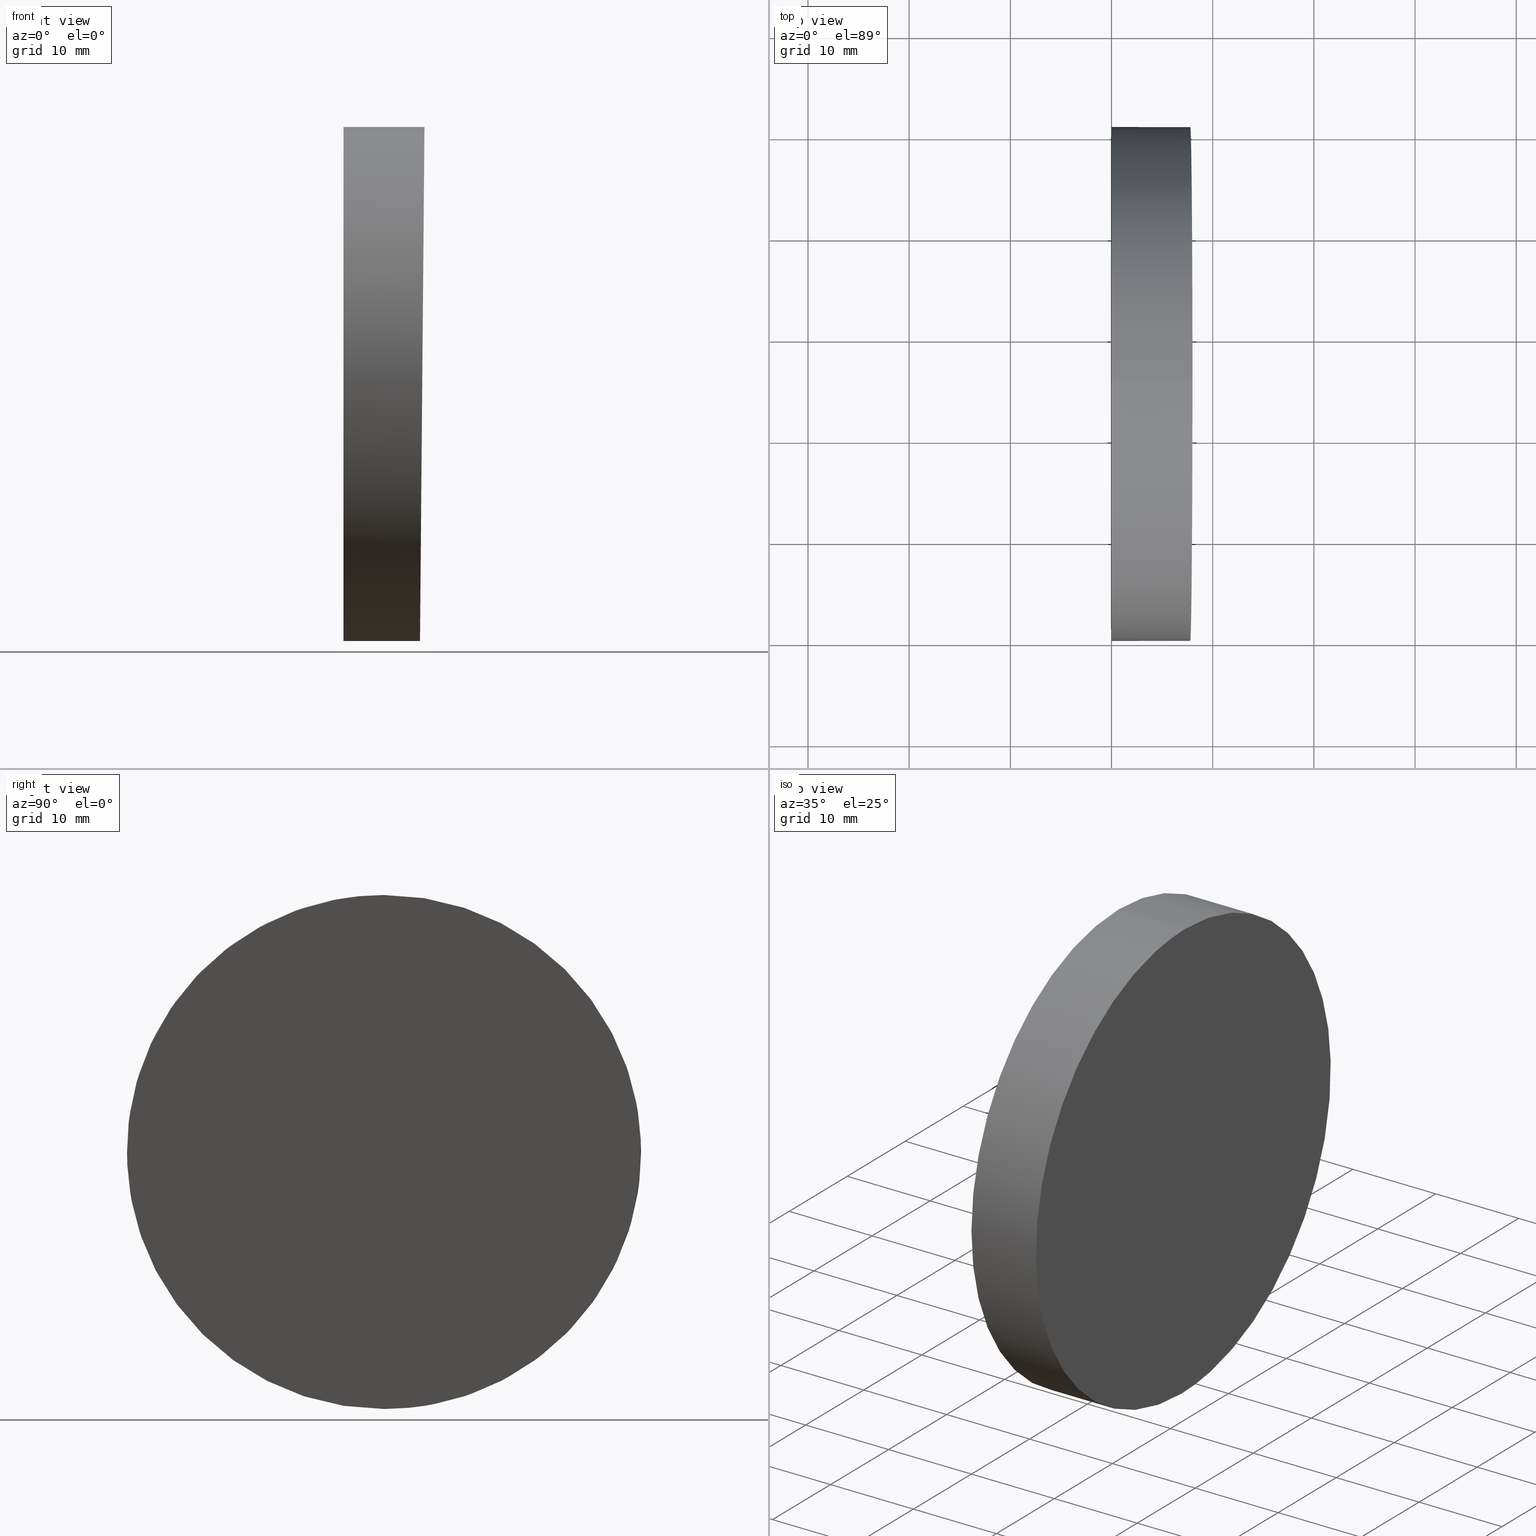
[diagram: canonical four-view strip — front | top / right | iso, engineering-drawing reading convention]
A machine part, canonical four-view strip (front | top / right | iso — engineering-drawing reading convention). The complete STEP part file that produces these views, byte-faithful:
ISO-10303-21;
HEADER;
FILE_DESCRIPTION (( 'STEP AP214' ),
    '1' );
FILE_NAME ('351502.STEP',
    '2019-08-14T07:58:45',
    ( 'user' ),
    ( '΢���й�' ),
    'SwSTEP 2.0',
    'SolidWorks 2016',
    '' );
FILE_SCHEMA (( 'AUTOMOTIVE_DESIGN' ));
ENDSEC;

DATA;
#1 = VERTEX_POINT ( 'NONE', #109 ) ;
#2 = COLOUR_RGB ( '',1.000000000000000000, 1.000000000000000000, 1.000000000000000000 ) ;
#3 = SURFACE_STYLE_FILL_AREA ( #131 ) ;
#4 = SURFACE_SIDE_STYLE ('',( #14 ) ) ;
#5 = FACE_OUTER_BOUND ( 'NONE', #124, .T. ) ;
#6 = CARTESIAN_POINT ( 'NONE',  ( 8.000000000000005300, 76.19999999999998900, 25.39999999999999900 ) ) ;
#7 = EDGE_LOOP ( 'NONE', ( #86, #9, #41, #103 ) ) ;
#8 = CARTESIAN_POINT ( 'NONE',  ( 8.000000000000005300, 50.79999999999999700, 25.39999999999999900 ) ) ;
#9 = ORIENTED_EDGE ( 'NONE', *, *, #98, .T. ) ;
#10 =( GEOMETRIC_REPRESENTATION_CONTEXT ( 3 ) GLOBAL_UNCERTAINTY_ASSIGNED_CONTEXT ( ( #113 ) ) GLOBAL_UNIT_ASSIGNED_CONTEXT ( ( #51, #116, #43 ) ) REPRESENTATION_CONTEXT ( 'NONE', 'WORKASPACE' ) );
#11 = ORIENTED_EDGE ( 'NONE', *, *, #111, .T. ) ;
#12 = APPLICATION_PROTOCOL_DEFINITION ( 'draft international standard', 'automotive_design', 1998, #87 ) ;
#13 = APPLICATION_CONTEXT ( 'automotive_design' ) ;
#14 = SURFACE_STYLE_FILL_AREA ( #76 ) ;
#15 = CARTESIAN_POINT ( 'NONE',  ( 12.50000000000000000, 25.40000000000000200, -25.39999999999999900 ) ) ;
#16 = UNCERTAINTY_MEASURE_WITH_UNIT (LENGTH_MEASURE( 1.000000000000000100E-005 ), #46, 'distance_accuracy_value', 'NONE');
#17 = FILL_AREA_STYLE_COLOUR ( '', #38 ) ;
#18 = CARTESIAN_POINT ( 'NONE',  ( 0.0000000000000000000, 25.40000000000000200, -25.39999999999999900 ) ) ;
#19 = EDGE_LOOP ( 'NONE', ( #110, #97, #11, #122 ) ) ;
#20 = CARTESIAN_POINT ( 'NONE',  ( 12.50000000000000000, 25.39999999999999900, 0.0000000000000000000 ) ) ;
#21 = AXIS2_PLACEMENT_3D ( 'NONE', #8, #71, #140 ) ;
#22 = AXIS2_PLACEMENT_3D ( 'NONE', #137, #63, #129 ) ;
#23 = VECTOR ( 'NONE', #70, 1000.000000000000000 ) ;
#24 = CLOSED_SHELL ( 'NONE', ( #32, #42, #77, #132 ) ) ;
#25 = PRODUCT_CONTEXT ( 'NONE', #13, 'mechanical' ) ;
#26 = APPLICATION_PROTOCOL_DEFINITION ( 'draft international standard', 'automotive_design', 1998, #13 ) ;
#27 = PRESENTATION_LAYER_ASSIGNMENT (  '', '', ( #39 ) ) ;
#28 = AXIS2_PLACEMENT_3D ( 'NONE', #130, #138, #53 ) ;
#29 = FILL_AREA_STYLE_COLOUR ( '', #2 ) ;
#30 =( NAMED_UNIT ( * ) SI_UNIT ( $, .STERADIAN. ) SOLID_ANGLE_UNIT ( ) );
#31 = CARTESIAN_POINT ( 'NONE',  ( 0.0000000000000000000, 25.39999999999999900, 25.39999999999999900 ) ) ;
#32 = ADVANCED_FACE ( 'NONE', ( #37 ), #121, .T. ) ;
#33 = DIRECTION ( 'NONE',  ( 0.0000000000000000000, 0.0000000000000000000, 1.000000000000000000 ) ) ;
#34 = EDGE_CURVE ( 'NONE', #1, #114, #36, .T. ) ;
#35 = LINE ( 'NONE', #15, #23 ) ;
#36 =( BOUNDED_CURVE ( )  B_SPLINE_CURVE ( 3, ( #57, #120, #81, #73 ),
 .UNSPECIFIED., .F., .T. ) 
 B_SPLINE_CURVE_WITH_KNOTS ( ( 4, 4 ),
 ( 0.0000000000000000000, 3.141592653589793100 ),
 .UNSPECIFIED. ) 
 CURVE ( )  GEOMETRIC_REPRESENTATION_ITEM ( )  RATIONAL_B_SPLINE_CURVE ( ( 1.000000000000000000, 0.3333333333333333700, 0.3333333333333333700, 1.000000000000000000 ) ) 
 REPRESENTATION_ITEM ( '' )  );
#37 = FACE_OUTER_BOUND ( 'NONE', #7, .T. ) ;
#38 = COLOUR_RGB ( '',1.000000000000000000, 1.000000000000000000, 1.000000000000000000 ) ;
#39 = STYLED_ITEM ( 'NONE', ( #117 ), #80 ) ;
#40 = DIRECTION ( 'NONE',  ( 1.000000000000000000, 0.0000000000000000000, 0.0000000000000000000 ) ) ;
#41 = ORIENTED_EDGE ( 'NONE', *, *, #133, .F. ) ;
#42 = ADVANCED_FACE ( 'NONE', ( #5 ), #93, .F. ) ;
#43 =( NAMED_UNIT ( * ) SI_UNIT ( $, .STERADIAN. ) SOLID_ANGLE_UNIT ( ) );
#44 = DIRECTION ( 'NONE',  ( -1.000000000000000000, 0.0000000000000000000, 0.0000000000000000000 ) ) ;
#45 = AXIS2_PLACEMENT_3D ( 'NONE', #48, #47, #108 ) ;
#46 =( LENGTH_UNIT ( ) NAMED_UNIT ( * ) SI_UNIT ( .MILLI., .METRE. ) );
#47 = DIRECTION ( 'NONE',  ( 1.000000000000000000, 0.0000000000000000000, 0.0000000000000000000 ) ) ;
#48 = CARTESIAN_POINT ( 'NONE',  ( 5.204170427930421300E-015, 50.79999999999999700, -25.39999999999999900 ) ) ;
#49 = ORIENTED_EDGE ( 'NONE', *, *, #34, .F. ) ;
#50 = STYLED_ITEM ( 'NONE', ( #125 ), #91 ) ;
#51 =( LENGTH_UNIT ( ) NAMED_UNIT ( * ) SI_UNIT ( .MILLI., .METRE. ) );
#52 = PRESENTATION_LAYER_ASSIGNMENT (  '', '', ( #50 ) ) ;
#53 = DIRECTION ( 'NONE',  ( 0.0000000000000000000, 0.0000000000000000000, 1.000000000000000000 ) ) ;
#54 = LINE ( 'NONE', #106, #105 ) ;
#55 = SURFACE_SIDE_STYLE ('',( #3 ) ) ;
#56 = CARTESIAN_POINT ( 'NONE',  ( 8.000000000000005300, 25.39999999999999900, 25.39999999999999900 ) ) ;
#57 = CARTESIAN_POINT ( 'NONE',  ( 7.556675116229812700, 25.40000000000000200, -25.39999999999999900 ) ) ;
#58 = ORIENTED_EDGE ( 'NONE', *, *, #95, .F. ) ;
#59 = MECHANICAL_DESIGN_GEOMETRIC_PRESENTATION_REPRESENTATION (  '', ( #50 ), #65 ) ;
#60 =( BOUNDED_CURVE ( )  B_SPLINE_CURVE ( 3, ( #56, #6, #139, #64 ),
 .UNSPECIFIED., .F., .T. ) 
 B_SPLINE_CURVE_WITH_KNOTS ( ( 4, 4 ),
 ( 3.141592653589793100, 6.283185307179586200 ),
 .UNSPECIFIED. ) 
 CURVE ( )  GEOMETRIC_REPRESENTATION_ITEM ( )  RATIONAL_B_SPLINE_CURVE ( ( 1.000000000000000000, 0.3333333333333333700, 0.3333333333333333700, 1.000000000000000000 ) ) 
 REPRESENTATION_ITEM ( '' )  );
#61 =( NAMED_UNIT ( * ) PLANE_ANGLE_UNIT ( ) SI_UNIT ( $, .RADIAN. ) );
#62 = FACE_OUTER_BOUND ( 'NONE', #19, .T. ) ;
#63 = DIRECTION ( 'NONE',  ( -1.000000000000000000, 0.0000000000000000000, 0.0000000000000000000 ) ) ;
#64 = CARTESIAN_POINT ( 'NONE',  ( 7.556675116229812700, 25.40000000000000200, -25.39999999999999900 ) ) ;
#65 =( GEOMETRIC_REPRESENTATION_CONTEXT ( 3 ) GLOBAL_UNCERTAINTY_ASSIGNED_CONTEXT ( ( #126 ) ) GLOBAL_UNIT_ASSIGNED_CONTEXT ( ( #136, #61, #128 ) ) REPRESENTATION_CONTEXT ( 'NONE', 'WORKASPACE' ) );
#66 = ORIENTED_EDGE ( 'NONE', *, *, #133, .T. ) ;
#67 = VERTEX_POINT ( 'NONE', #18 ) ;
#68 = AXIS2_PLACEMENT_3D ( 'NONE', #118, #44, #104 ) ;
#69 = SURFACE_STYLE_USAGE ( .BOTH. , #4 ) ;
#70 = DIRECTION ( 'NONE',  ( -1.000000000000000000, -0.0000000000000000000, -0.0000000000000000000 ) ) ;
#71 = DIRECTION ( 'NONE',  ( -0.9999619230641714200, 0.0000000000000000000, 0.008726535498366987100 ) ) ;
#72 = SHAPE_DEFINITION_REPRESENTATION ( #102, #91 ) ;
#73 = CARTESIAN_POINT ( 'NONE',  ( 8.000000000000005300, 25.39999999999999900, 25.39999999999999900 ) ) ;
#74 = VERTEX_POINT ( 'NONE', #31 ) ;
#75 = MECHANICAL_DESIGN_GEOMETRIC_PRESENTATION_REPRESENTATION (  '', ( #39 ), #85 ) ;
#76 = FILL_AREA_STYLE ('',( #29 ) ) ;
#77 = ADVANCED_FACE ( 'NONE', ( #88 ), #92, .F. ) ;
#78 = CARTESIAN_POINT ( 'NONE',  ( 8.000000000000005300, 25.39999999999999900, 25.39999999999999900 ) ) ;
#79 = DIRECTION ( 'NONE',  ( -1.000000000000000000, -0.0000000000000000000, -0.0000000000000000000 ) ) ;
#80 = MANIFOLD_SOLID_BREP ( '�г�-����2', #24 ) ;
#81 = CARTESIAN_POINT ( 'NONE',  ( 8.000000000000005300, -25.40000000000000900, 25.39999999999998800 ) ) ;
#82 = DIRECTION ( 'NONE',  ( -1.000000000000000000, -0.0000000000000000000, -0.0000000000000000000 ) ) ;
#83 = AXIS2_PLACEMENT_3D ( 'NONE', #20, #82, #33 ) ;
#84 = AXIS2_PLACEMENT_3D ( 'NONE', #89, #115, #40 ) ;
#85 =( GEOMETRIC_REPRESENTATION_CONTEXT ( 3 ) GLOBAL_UNCERTAINTY_ASSIGNED_CONTEXT ( ( #16 ) ) GLOBAL_UNIT_ASSIGNED_CONTEXT ( ( #46, #107, #30 ) ) REPRESENTATION_CONTEXT ( 'NONE', 'WORKASPACE' ) );
#86 = ORIENTED_EDGE ( 'NONE', *, *, #95, .T. ) ;
#87 = APPLICATION_CONTEXT ( 'automotive_design' ) ;
#88 = FACE_OUTER_BOUND ( 'NONE', #127, .T. ) ;
#89 = CARTESIAN_POINT ( 'NONE',  ( 0.0000000000000000000, 0.0000000000000000000, 0.0000000000000000000 ) ) ;
#90 = PRODUCT_DEFINITION ( 'δ֪', '', #100, #96 ) ;
#91 = ADVANCED_BREP_SHAPE_REPRESENTATION ( '351502', ( #80, #84 ), #10 ) ;
#92 = PLANE ( 'NONE',  #21 ) ;
#93 = PLANE ( 'NONE',  #45 ) ;
#94 = ORIENTED_EDGE ( 'NONE', *, *, #123, .T. ) ;
#95 = EDGE_CURVE ( 'NONE', #114, #1, #60, .T. ) ;
#96 = PRODUCT_DEFINITION_CONTEXT ( 'detailed design', #87, 'design' ) ;
#97 = ORIENTED_EDGE ( 'NONE', *, *, #34, .T. ) ;
#98 = EDGE_CURVE ( 'NONE', #1, #67, #35, .T. ) ;
#99 = PRODUCT ( '351502', '351502', '', ( #25 ) ) ;
#100 = PRODUCT_DEFINITION_FORMATION_WITH_SPECIFIED_SOURCE ( '�κ�', '', #99, .NOT_KNOWN. ) ;
#101 = CYLINDRICAL_SURFACE ( 'NONE', #28, 25.39999999999999900 ) ;
#102 = PRODUCT_DEFINITION_SHAPE ( 'NONE', 'NONE',  #90 ) ;
#103 = ORIENTED_EDGE ( 'NONE', *, *, #111, .F. ) ;
#104 = DIRECTION ( 'NONE',  ( 0.0000000000000000000, 0.0000000000000000000, 1.000000000000000000 ) ) ;
#105 = VECTOR ( 'NONE', #79, 1000.000000000000000 ) ;
#106 = CARTESIAN_POINT ( 'NONE',  ( 12.50000000000000000, 25.39999999999999900, 25.39999999999999900 ) ) ;
#107 =( NAMED_UNIT ( * ) PLANE_ANGLE_UNIT ( ) SI_UNIT ( $, .RADIAN. ) );
#108 = DIRECTION ( 'NONE',  ( 0.0000000000000000000, 0.0000000000000000000, -1.000000000000000000 ) ) ;
#109 = CARTESIAN_POINT ( 'NONE',  ( 7.556675116229812700, 25.40000000000000200, -25.39999999999999900 ) ) ;
#110 = ORIENTED_EDGE ( 'NONE', *, *, #98, .F. ) ;
#111 = EDGE_CURVE ( 'NONE', #114, #74, #54, .T. ) ;
#112 = PRODUCT_RELATED_PRODUCT_CATEGORY ( 'part', '', ( #99 ) ) ;
#113 = UNCERTAINTY_MEASURE_WITH_UNIT (LENGTH_MEASURE( 1.000000000000000100E-005 ), #51, 'distance_accuracy_value', 'NONE');
#114 = VERTEX_POINT ( 'NONE', #78 ) ;
#115 = DIRECTION ( 'NONE',  ( 0.0000000000000000000, 0.0000000000000000000, 1.000000000000000000 ) ) ;
#116 =( NAMED_UNIT ( * ) PLANE_ANGLE_UNIT ( ) SI_UNIT ( $, .RADIAN. ) );
#117 = PRESENTATION_STYLE_ASSIGNMENT (( #119 ) ) ;
#118 = CARTESIAN_POINT ( 'NONE',  ( 0.0000000000000000000, 25.39999999999999900, 0.0000000000000000000 ) ) ;
#119 = SURFACE_STYLE_USAGE ( .BOTH. , #55 ) ;
#120 = CARTESIAN_POINT ( 'NONE',  ( 7.556675116229813600, -25.40000000000000900, -25.39999999999999900 ) ) ;
#121 = CYLINDRICAL_SURFACE ( 'NONE', #83, 25.39999999999999900 ) ;
#122 = ORIENTED_EDGE ( 'NONE', *, *, #123, .F. ) ;
#123 = EDGE_CURVE ( 'NONE', #67, #74, #135, .T. ) ;
#124 = EDGE_LOOP ( 'NONE', ( #66, #94 ) ) ;
#125 = PRESENTATION_STYLE_ASSIGNMENT (( #69 ) ) ;
#126 = UNCERTAINTY_MEASURE_WITH_UNIT (LENGTH_MEASURE( 1.000000000000000100E-005 ), #136, 'distance_accuracy_value', 'NONE');
#127 = EDGE_LOOP ( 'NONE', ( #58, #49 ) ) ;
#128 =( NAMED_UNIT ( * ) SI_UNIT ( $, .STERADIAN. ) SOLID_ANGLE_UNIT ( ) );
#129 = DIRECTION ( 'NONE',  ( 0.0000000000000000000, 0.0000000000000000000, 1.000000000000000000 ) ) ;
#130 = CARTESIAN_POINT ( 'NONE',  ( 12.50000000000000000, 25.39999999999999900, 0.0000000000000000000 ) ) ;
#131 = FILL_AREA_STYLE ('',( #17 ) ) ;
#132 = ADVANCED_FACE ( 'NONE', ( #62 ), #101, .T. ) ;
#133 = EDGE_CURVE ( 'NONE', #74, #67, #134, .T. ) ;
#134 = CIRCLE ( 'NONE', #22, 25.39999999999999900 ) ;
#135 = CIRCLE ( 'NONE', #68, 25.39999999999999900 ) ;
#136 =( LENGTH_UNIT ( ) NAMED_UNIT ( * ) SI_UNIT ( .MILLI., .METRE. ) );
#137 = CARTESIAN_POINT ( 'NONE',  ( 0.0000000000000000000, 25.39999999999999900, 0.0000000000000000000 ) ) ;
#138 = DIRECTION ( 'NONE',  ( -1.000000000000000000, -0.0000000000000000000, -0.0000000000000000000 ) ) ;
#139 = CARTESIAN_POINT ( 'NONE',  ( 7.556675116229813600, 76.19999999999998900, -25.39999999999999900 ) ) ;
#140 = DIRECTION ( 'NONE',  ( 0.008726535498366987100, 0.0000000000000000000, 0.9999619230641714200 ) ) ;
ENDSEC;
END-ISO-10303-21;
